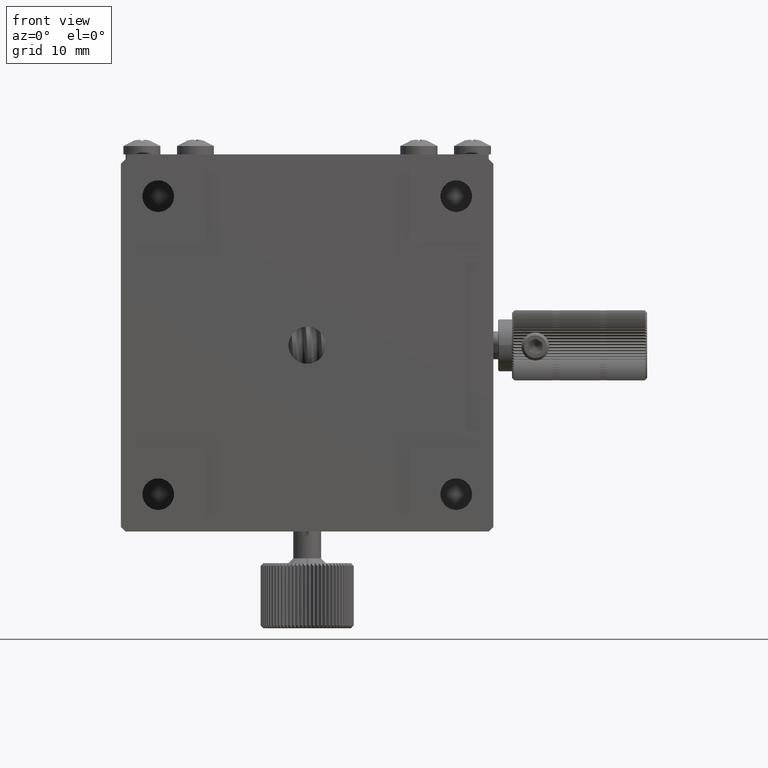
[diagram: clean part render]
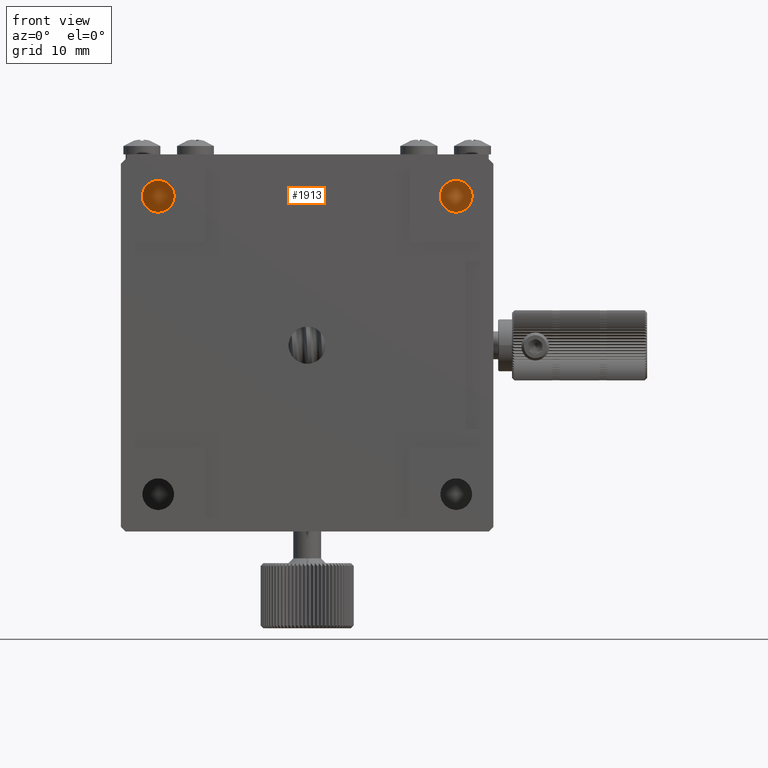
[diagram: same view with one face highlighted and labeled with its STEP entity id]
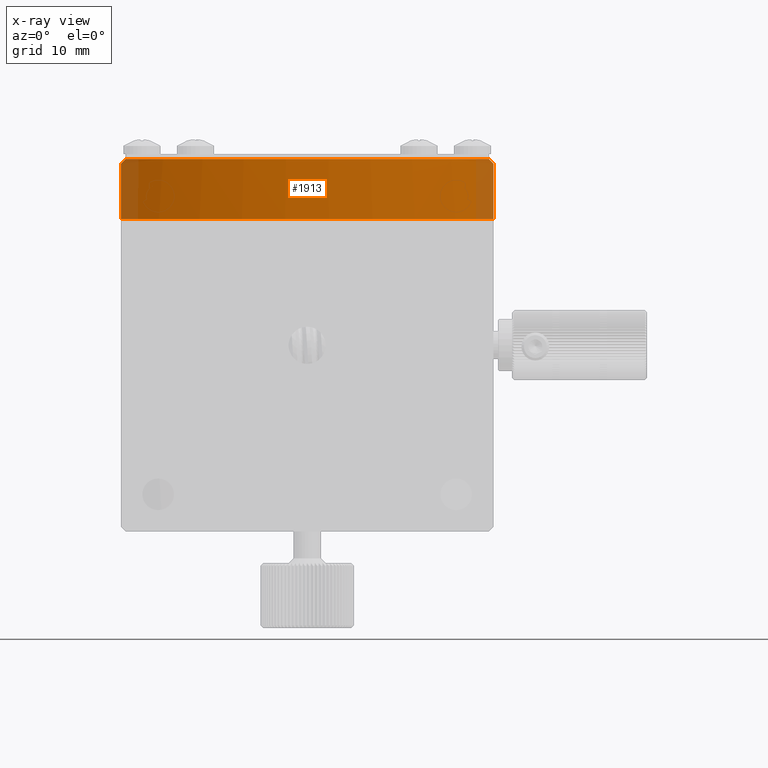
[diagram: x-ray of the same camera — body ghosted, the highlighted face saturated]
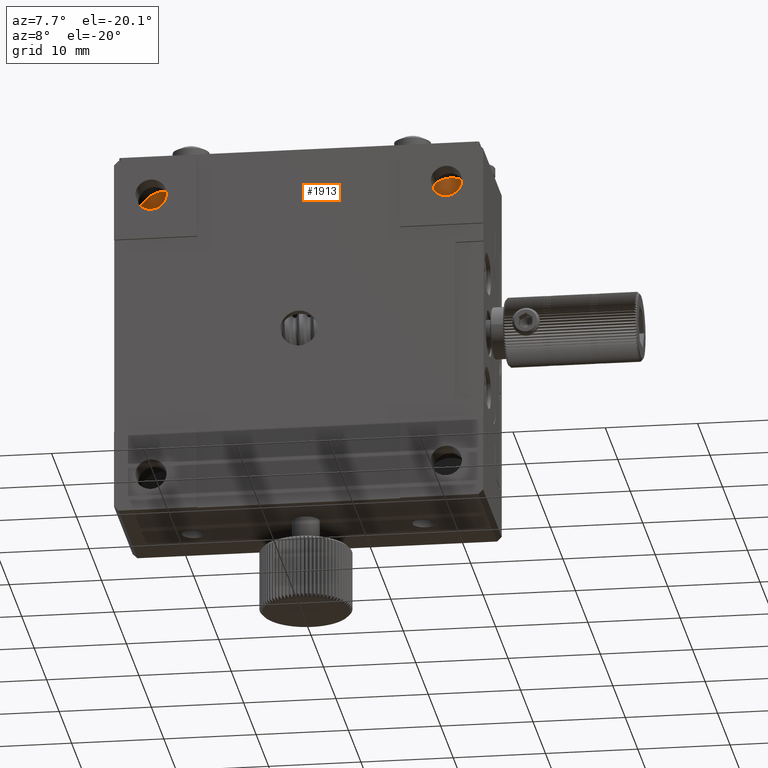
[diagram: same view with one face highlighted and labeled with its STEP entity id]
A machine part, front view. The second image highlights one B-rep face of the part: STEP entity #1913.
The next image is the same camera in x-ray: the body ghosted, the highlighted face saturated — about 9% of this face is hidden behind the body in this view.
A second angle (auxiliary view) of the same face is appended — the face is thin or edge-on in the first view.
In plain terms, the highlighted cylindrical surface (partial cylindrical patch) has radius 36.5 mm, axis along (-0, -0, -1).
Its self-contained STEP definition (entity closure, byte-faithful):
#1780 = DIRECTION ( 'NONE',  ( 0.000000000000000000, -0.000000000000000000, -1.000000000000000000 ) ) ;
#1913 = ADVANCED_FACE ( 'NONE', ( #62260 ), #6896, .T. ) ;
#2767 = ORIENTED_EDGE ( 'NONE', *, *, #36848, .F. ) ;
#3150 = CARTESIAN_POINT ( 'NONE',  ( -19.49999999999999645, -30.85449724108300984, 20.00000000000000355 ) ) ;
#6373 = VERTEX_POINT ( 'NONE', #59784 ) ;
#6896 = CYLINDRICAL_SURFACE ( 'NONE', #48219, 36.49999999999998579 ) ;
#6998 = ORIENTED_EDGE ( 'NONE', *, *, #58133, .F. ) ;
#7310 = CARTESIAN_POINT ( 'NONE',  ( 20.00000000000000355, -30.53276928154402725, 19.50000000000000355 ) ) ;
#9520 = ORIENTED_EDGE ( 'NONE', *, *, #34835, .T. ) ;
#11129 = DIRECTION ( 'NONE',  ( -0.000000000000000000, -0.000000000000000000, -1.000000000000000000 ) ) ;
#11158 = ORIENTED_EDGE ( 'NONE', *, *, #48140, .F. ) ;
#13273 = CARTESIAN_POINT ( 'NONE',  ( 0.000000000000000000, 0.000000000000000000, 20.00000000000000000 ) ) ;
#14866 = VECTOR ( 'NONE', #1780, 1000.000000000000000 ) ;
#16177 = CIRCLE ( 'NONE', #24378, 36.49999999999998579 ) ;
#17470 = CARTESIAN_POINT ( 'NONE',  ( 0.000000000000000000, 0.000000000000000000, 13.54959345562317985 ) ) ;
#17734 = CARTESIAN_POINT ( 'NONE',  ( -19.83420865909386777, -30.64136823591817205, 19.66579134090614289 ) ) ;
#19334 = EDGE_LOOP ( 'NONE', ( #6998, #32150, #11158, #26883, #2767, #9520 ) ) ;
#22558 = CARTESIAN_POINT ( 'NONE',  ( -19.49999999999999645, -30.85449724108300984, 20.00000000000000355 ) ) ;
#23115 = CARTESIAN_POINT ( 'NONE',  ( 0.000000000000000000, 0.000000000000000000, 20.00000000000000000 ) ) ;
#23700 = VERTEX_POINT ( 'NONE', #3150 ) ;
#24378 = AXIS2_PLACEMENT_3D ( 'NONE', #23115, #42127, #57594 ) ;
#26883 = ORIENTED_EDGE ( 'NONE', *, *, #56274, .T. ) ;
#27462 = DIRECTION ( 'NONE',  ( 0.000000000000000000, 0.000000000000000000, 1.000000000000000000 ) ) ;
#31098 = CARTESIAN_POINT ( 'NONE',  ( 20.00000000000000355, -30.53276928154403080, 13.54959345562317985 ) ) ;
#31630 = CARTESIAN_POINT ( 'NONE',  ( 19.50000000000000000, -30.85449724108300629, 20.00000000000000355 ) ) ;
#32150 = ORIENTED_EDGE ( 'NONE', *, *, #46375, .T. ) ;
#32440 = CARTESIAN_POINT ( 'NONE',  ( 20.00000000000000355, -30.53276928154402725, 19.50000000000000355 ) ) ;
#34755 = VERTEX_POINT ( 'NONE', #61880 ) ;
#34835 = EDGE_CURVE ( 'NONE', #23700, #6373, #53780, .T. ) ;
#36642 = CARTESIAN_POINT ( 'NONE',  ( 19.50000000000000000, -30.85449724108300629, 20.00000000000000355 ) ) ;
#36848 = EDGE_CURVE ( 'NONE', #23700, #49633, #16177, .T. ) ;
#37362 = CARTESIAN_POINT ( 'NONE',  ( -20.00000000000000355, -30.53276928154402725, 19.50000000000000355 ) ) ;
#38369 = DIRECTION ( 'NONE',  ( 0.000000000000000000, 0.000000000000000000, 1.000000000000000000 ) ) ;
#40772 = LINE ( 'NONE', #54647, #14866 ) ;
#41473 = CARTESIAN_POINT ( 'NONE',  ( 19.66753830690605653, -30.74861326056822364, 19.83246169309393991 ) ) ;
#42127 = DIRECTION ( 'NONE',  ( 0.000000000000000000, 0.000000000000000000, 1.000000000000000000 ) ) ;
#42194 = CARTESIAN_POINT ( 'NONE',  ( -19.66753830690604232, -30.74861326056823430, 19.83246169309395768 ) ) ;
#44146 = LINE ( 'NONE', #48370, #61399 ) ;
#45002 = VERTEX_POINT ( 'NONE', #31098 ) ;
#45899 = DIRECTION ( 'NONE',  ( -1.000000000000000000, 0.000000000000000000, 0.000000000000000000 ) ) ;
#46375 = EDGE_CURVE ( 'NONE', #34755, #45002, #62322, .T. ) ;
#47407 = DIRECTION ( 'NONE',  ( -1.000000000000000000, 0.000000000000000000, 0.000000000000000000 ) ) ;
#47875 = VERTEX_POINT ( 'NONE', #7310 ) ;
#48140 = EDGE_CURVE ( 'NONE', #47875, #45002, #40772, .T. ) ;
#48219 = AXIS2_PLACEMENT_3D ( 'NONE', #13273, #11129, #45899 ) ;
#48370 = CARTESIAN_POINT ( 'NONE',  ( -20.00000000000000355, -30.53276928154402725, 20.00000000000000000 ) ) ;
#49633 = VERTEX_POINT ( 'NONE', #31630 ) ;
#50994 = AXIS2_PLACEMENT_3D ( 'NONE', #17470, #27462, #47407 ) ;
#53780 =( BOUNDED_CURVE ( )  B_SPLINE_CURVE ( 3, ( #22558, #42194, #17734, #37362 ),
 .UNSPECIFIED., .F., .T. ) 
 B_SPLINE_CURVE_WITH_KNOTS ( ( 4, 4 ),
 ( 5.276005196115835183, 5.292294859164660359 ),
 .UNSPECIFIED. ) 
 CURVE ( )  GEOMETRIC_REPRESENTATION_ITEM ( )  RATIONAL_B_SPLINE_CURVE ( ( 1.000000000000000000, 0.9999778873620561725, 0.9999778873620561725, 1.000000000000000000 ) ) 
 REPRESENTATION_ITEM ( '' )  );
#54647 = CARTESIAN_POINT ( 'NONE',  ( 20.00000000000000355, -30.53276928154402725, 20.00000000000000000 ) ) ;
#56274 = EDGE_CURVE ( 'NONE', #47875, #49633, #62083, .T. ) ;
#57594 = DIRECTION ( 'NONE',  ( -1.000000000000000000, 0.000000000000000000, 0.000000000000000000 ) ) ;
#58133 = EDGE_CURVE ( 'NONE', #34755, #6373, #44146, .T. ) ;
#59784 = CARTESIAN_POINT ( 'NONE',  ( -20.00000000000000355, -30.53276928154402725, 19.50000000000000355 ) ) ;
#61399 = VECTOR ( 'NONE', #38369, 1000.000000000000000 ) ;
#61797 = CARTESIAN_POINT ( 'NONE',  ( 19.83420865909388198, -30.64136823591816494, 19.66579134090612513 ) ) ;
#61880 = CARTESIAN_POINT ( 'NONE',  ( -20.00000000000000355, -30.53276928154402725, 13.54959345562317985 ) ) ;
#62083 =( BOUNDED_CURVE ( )  B_SPLINE_CURVE ( 3, ( #32440, #61797, #41473, #36642 ),
 .UNSPECIFIED., .F., .T. ) 
 B_SPLINE_CURVE_WITH_KNOTS ( ( 4, 4 ),
 ( 0.9908904480149255400, 1.007180111063750827 ),
 .UNSPECIFIED. ) 
 CURVE ( )  GEOMETRIC_REPRESENTATION_ITEM ( )  RATIONAL_B_SPLINE_CURVE ( ( 1.000000000000000000, 0.9999778873620561725, 0.9999778873620561725, 1.000000000000000000 ) ) 
 REPRESENTATION_ITEM ( '' )  );
#62260 = FACE_OUTER_BOUND ( 'NONE', #19334, .T. ) ;
#62322 = CIRCLE ( 'NONE', #50994, 36.49999999999998579 ) ;